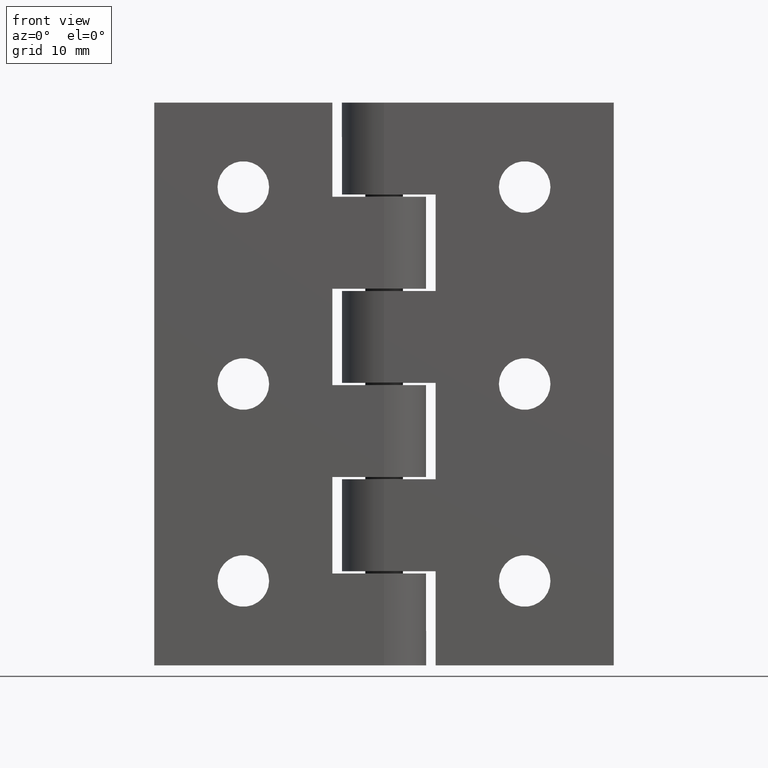
[diagram: clean part render]
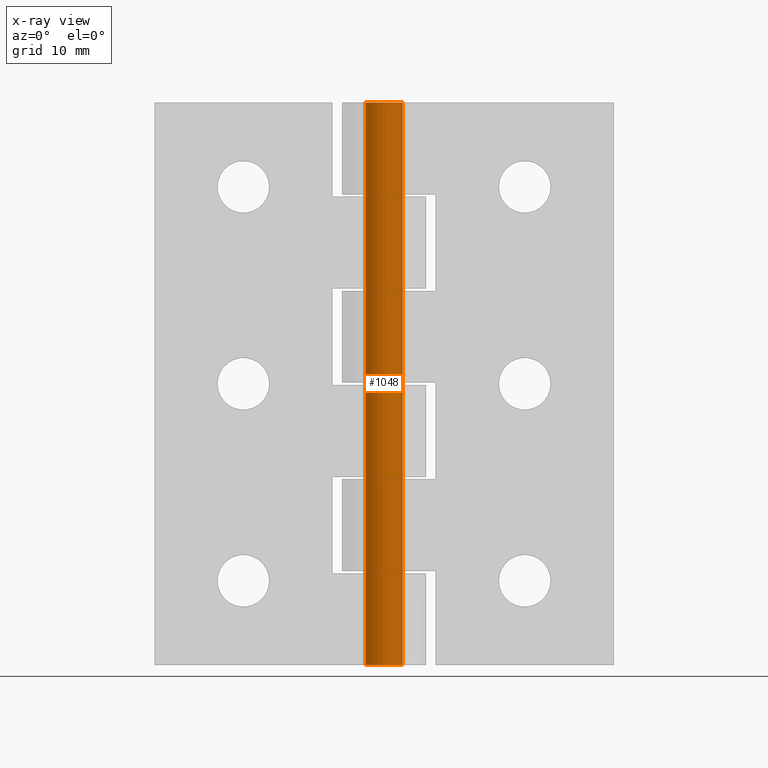
[diagram: x-ray — body ghosted, one internal face saturated and labeled with its STEP entity id]
A machine part, front view, then the same camera in x-ray: the body is ghosted and one INTERNAL B-rep face — a face not visible from any outside direction — is saturated and labeled: STEP entity #1048.
In plain terms, the highlighted cylindrical surface (bore or boss wall) has radius 2 mm, axis along (0, 0, 1).
Its self-contained STEP definition (entity closure, byte-faithful):
#83=FACE_BOUND('',#316,.T.);
#156=CIRCLE('',#1162,2.);
#157=CIRCLE('',#1163,2.);
#214=FACE_OUTER_BOUND('',#315,.T.);
#315=EDGE_LOOP('',(#963));
#316=EDGE_LOOP('',(#964));
#575=VERTEX_POINT('',#1780);
#576=VERTEX_POINT('',#1782);
#705=EDGE_CURVE('',#575,#575,#156,.T.);
#706=EDGE_CURVE('',#576,#576,#157,.T.);
#963=ORIENTED_EDGE('',*,*,#705,.F.);
#964=ORIENTED_EDGE('',*,*,#706,.F.);
#991=CYLINDRICAL_SURFACE('',#1161,2.);
#1048=ADVANCED_FACE('',(#214,#83),#991,.T.);
#1161=AXIS2_PLACEMENT_3D('',#1779,#1462,#1463);
#1162=AXIS2_PLACEMENT_3D('',#1781,#1464,#1465);
#1163=AXIS2_PLACEMENT_3D('',#1783,#1466,#1467);
#1462=DIRECTION('center_axis',(0.,0.,1.));
#1463=DIRECTION('ref_axis',(-1.,0.,0.));
#1464=DIRECTION('center_axis',(0.,0.,1.));
#1465=DIRECTION('ref_axis',(-1.,0.,0.));
#1466=DIRECTION('center_axis',(0.,0.,-1.));
#1467=DIRECTION('ref_axis',(-1.,0.,0.));
#1779=CARTESIAN_POINT('Origin',(24.5,4.5,0.));
#1780=CARTESIAN_POINT('',(26.5,4.5,60.));
#1781=CARTESIAN_POINT('Origin',(24.5,4.5,60.));
#1782=CARTESIAN_POINT('',(26.5,4.5,0.));
#1783=CARTESIAN_POINT('Origin',(24.5,4.5,0.));